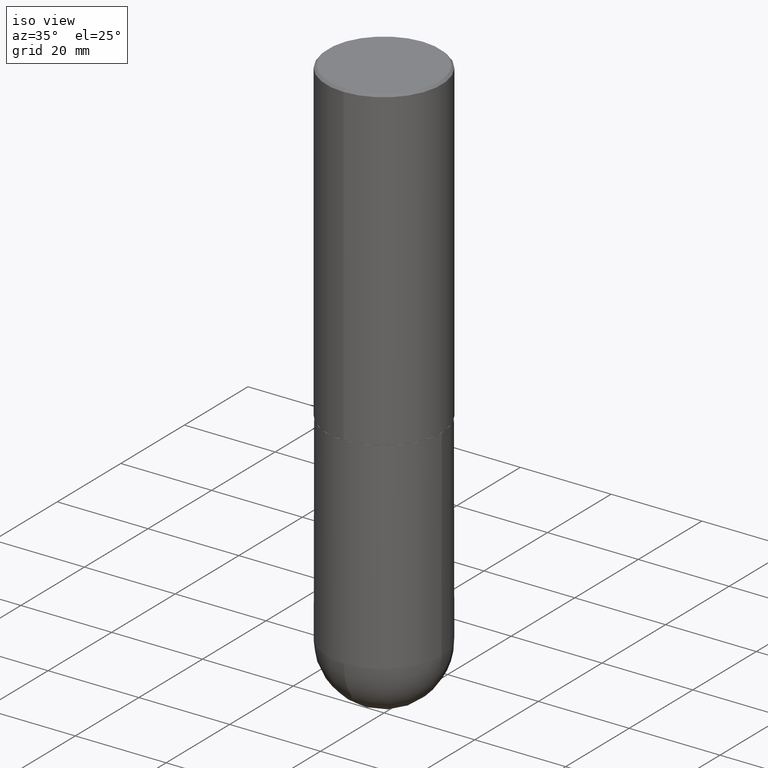
[diagram: clean part render]
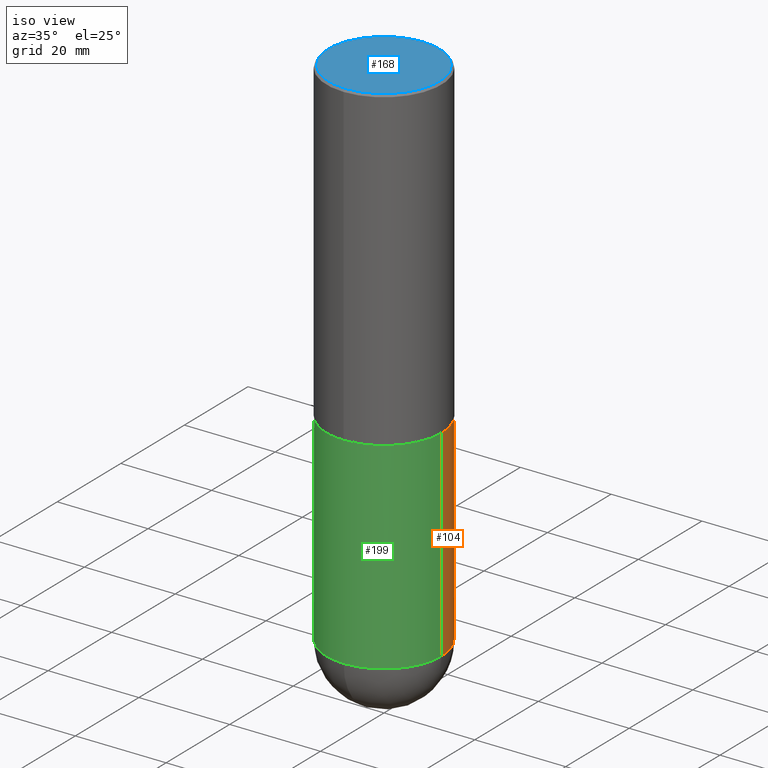
[diagram: same view with three faces highlighted in distinct colors, each labeled with its STEP entity id]
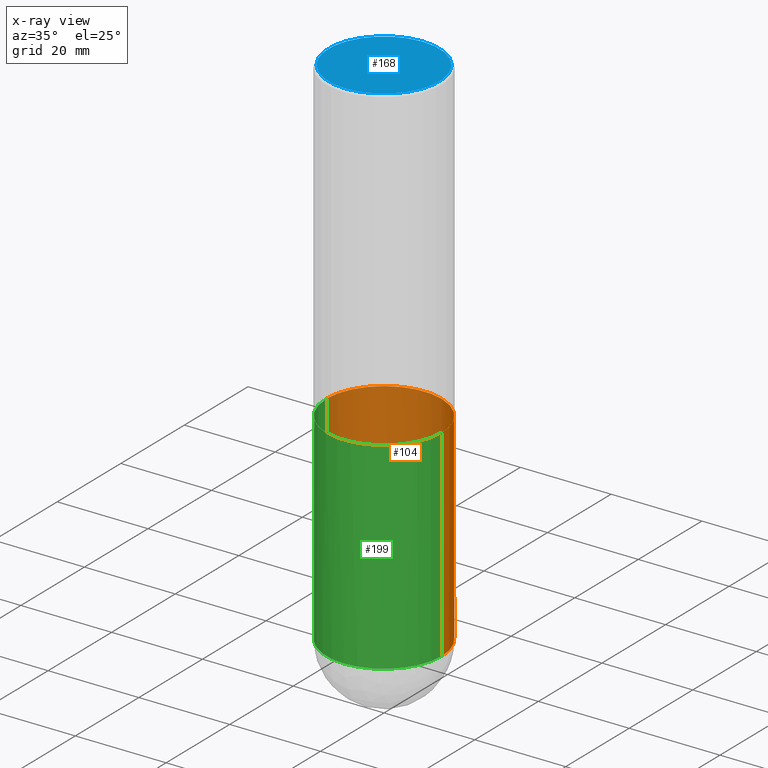
[diagram: x-ray of the same camera — body ghosted, the three highlighted faces saturated]
A machine part, iso view with three faces highlighted in distinct colors.
The next image is the same camera in x-ray (body ghosted, the three faces saturated) — at least one of them is partly hidden behind the body in this view.
Their STEP definitions:

[orange] entity #104 — the highlighted cylindrical surface (partial cylindrical patch) has radius 12.7 mm, axis along (-0, 0, 1).
#25 = ORIENTED_EDGE ( 'NONE', *, *, #386, .F. ) ;
#40 = CARTESIAN_POINT ( 'NONE',  ( 3.491481338843242218E-15, 0.4999999999999841238, -4.500000000000000888 ) ) ;
#50 = ORIENTED_EDGE ( 'NONE', *, *, #409, .T. ) ;
#55 = DIRECTION ( 'NONE',  ( -2.445468806185136597E-29, 3.491481338843145583E-15, 1.000000000000000000 ) ) ;
#56 = CARTESIAN_POINT ( 'NONE',  ( 1.100460962783311244E-28, -1.571166602479415374E-14, -4.499999999999999112 ) ) ;
#61 = DIRECTION ( 'NONE',  ( -2.445468806185136597E-29, 3.491481338843145583E-15, 1.000000000000000000 ) ) ;
#63 = ORIENTED_EDGE ( 'NONE', *, *, #297, .T. ) ;
#67 = ORIENTED_EDGE ( 'NONE', *, *, #80, .T. ) ;
#80 = EDGE_CURVE ( 'NONE', #353, #195, #116, .T. ) ;
#83 = VECTOR ( 'NONE', #164, 39.37007874015748143 ) ;
#88 = VERTEX_POINT ( 'NONE', #147 ) ;
#90 = VERTEX_POINT ( 'NONE', #359 ) ;
#96 = VECTOR ( 'NONE', #338, 39.37007874015748143 ) ;
#103 = CIRCLE ( 'NONE', #163, 0.5000000000000000000 ) ;
#104 = ADVANCED_FACE ( 'NONE', ( #117 ), #216, .T. ) ;
#112 = DIRECTION ( 'NONE',  ( -2.445468806185136597E-29, 3.491481338843145583E-15, 1.000000000000000000 ) ) ;
#116 = CIRCLE ( 'NONE', #139, 0.5000000000000000000 ) ;
#117 = FACE_OUTER_BOUND ( 'NONE', #363, .T. ) ;
#139 = AXIS2_PLACEMENT_3D ( 'NONE', #397, #112, #392 ) ;
#147 = CARTESIAN_POINT ( 'NONE',  ( -0.5000000000000000000, -9.103906174505900082E-15, -2.750000000000000000 ) ) ;
#155 = DIRECTION ( 'NONE',  ( -2.445468806185136597E-29, 3.491481338843145583E-15, 1.000000000000000000 ) ) ;
#158 = CARTESIAN_POINT ( 'NONE',  ( 6.725039217009124520E-29, -9.601573681818649859E-15, -2.750000000000000000 ) ) ;
#159 = VERTEX_POINT ( 'NONE', #212 ) ;
#163 = AXIS2_PLACEMENT_3D ( 'NONE', #158, #61, #283 ) ;
#164 = DIRECTION ( 'NONE',  ( -2.445468806185136877E-29, 3.491481338843145188E-15, 1.000000000000000000 ) ) ;
#174 = AXIS2_PLACEMENT_3D ( 'NONE', #303, #55, #279 ) ;
#177 = ORIENTED_EDGE ( 'NONE', *, *, #245, .F. ) ;
#195 = VERTEX_POINT ( 'NONE', #336 ) ;
#211 = CIRCLE ( 'NONE', #325, 0.5000000000000000000 ) ;
#212 = CARTESIAN_POINT ( 'NONE',  ( 0.5000000000000000000, -1.309305502066178321E-14, -2.750000000000000000 ) ) ;
#216 = CYLINDRICAL_SURFACE ( 'NONE', #174, 0.5000000000000000000 ) ;
#245 = EDGE_CURVE ( 'NONE', #159, #88, #103, .T. ) ;
#252 = LINE ( 'NONE', #412, #83 ) ;
#279 = DIRECTION ( 'NONE',  ( 1.000000000000000000, -6.982962677686266711E-15, 4.876176775795935793E-29 ) ) ;
#283 = DIRECTION ( 'NONE',  ( 1.000000000000000000, -6.982962677686266711E-15, 0.000000000000000000 ) ) ;
#297 = EDGE_CURVE ( 'NONE', #195, #88, #252, .T. ) ;
#303 = CARTESIAN_POINT ( 'NONE',  ( 0.000000000000000000, 0.000000000000000000, 0.000000000000000000 ) ) ;
#325 = AXIS2_PLACEMENT_3D ( 'NONE', #56, #155, #351 ) ;
#336 = CARTESIAN_POINT ( 'NONE',  ( -0.5000000000000000000, -9.103906174505904815E-15, -4.499999999999999112 ) ) ;
#338 = DIRECTION ( 'NONE',  ( -2.445468806185136877E-29, 3.491481338843145188E-15, 1.000000000000000000 ) ) ;
#351 = DIRECTION ( 'NONE',  ( 1.000000000000000000, -6.982962677686262766E-15, 0.000000000000000000 ) ) ;
#353 = VERTEX_POINT ( 'NONE', #40 ) ;
#359 = CARTESIAN_POINT ( 'NONE',  ( 0.5000000000000000000, -1.614810119214953752E-14, -4.499999999999999112 ) ) ;
#363 = EDGE_LOOP ( 'NONE', ( #67, #63, #177, #25, #50 ) ) ;
#382 = LINE ( 'NONE', #404, #96 ) ;
#386 = EDGE_CURVE ( 'NONE', #90, #159, #382, .T. ) ;
#392 = DIRECTION ( 'NONE',  ( 1.000000000000000000, -6.982962677686262766E-15, 0.000000000000000000 ) ) ;
#397 = CARTESIAN_POINT ( 'NONE',  ( 1.100460962783311244E-28, -1.571166602479415374E-14, -4.499999999999999112 ) ) ;
#404 = CARTESIAN_POINT ( 'NONE',  ( 0.5000000000000000000, -3.491481338843133355E-15, 2.438088387897967896E-29 ) ) ;
#409 = EDGE_CURVE ( 'NONE', #90, #353, #211, .T. ) ;
#412 = CARTESIAN_POINT ( 'NONE',  ( -0.5000000000000000000, 3.552713678800500929E-15, -2.459467545127452891E-29 ) ) ;

[blue] entity #168 — the highlighted planar face has unit normal (0, -0, -1).
#19 = ORIENTED_EDGE ( 'NONE', *, *, #320, .T. ) ;
#51 = DIRECTION ( 'NONE',  ( 2.445544383253700422E-29, -3.491373108179382004E-15, -1.000000000000000000 ) ) ;
#53 = EDGE_CURVE ( 'NONE', #203, #94, #394, .T. ) ;
#94 = VERTEX_POINT ( 'NONE', #399 ) ;
#127 = CARTESIAN_POINT ( 'NONE',  ( 3.421651712066269268E-15, 0.4799999999999996492, -1.377115168337680020E-15 ) ) ;
#168 = ADVANCED_FACE ( 'NONE', ( #185 ), #333, .F. ) ;
#169 = ORIENTED_EDGE ( 'NONE', *, *, #53, .T. ) ;
#176 = DIRECTION ( 'NONE',  ( 6.982962677686265922E-15, 1.000000000000000000, -3.491373108179382004E-15 ) ) ;
#185 = FACE_OUTER_BOUND ( 'NONE', #275, .T. ) ;
#200 = CIRCLE ( 'NONE', #319, 0.4799999999999996492 ) ;
#203 = VERTEX_POINT ( 'NONE', #127 ) ;
#215 = DIRECTION ( 'NONE',  ( -6.982962677686265922E-15, -1.000000000000000000, 3.491373108179382399E-15 ) ) ;
#224 = DIRECTION ( 'NONE',  ( -2.445544383253700702E-29, 3.491373108179382004E-15, 1.000000000000000000 ) ) ;
#236 = DIRECTION ( 'NONE',  ( -6.982962677686265922E-15, -1.000000000000000000, 3.491373108179382399E-15 ) ) ;
#240 = CARTESIAN_POINT ( 'NONE',  ( -7.305915243628390316E-45, 1.043026501048613982E-30, 2.987439235884223367E-16 ) ) ;
#275 = EDGE_LOOP ( 'NONE', ( #169, #19 ) ) ;
#287 = AXIS2_PLACEMENT_3D ( 'NONE', #401, #51, #176 ) ;
#312 = CARTESIAN_POINT ( 'NONE',  ( -7.305915243628390316E-45, 1.043026501048613982E-30, 2.987439235884223367E-16 ) ) ;
#319 = AXIS2_PLACEMENT_3D ( 'NONE', #312, #224, #215 ) ;
#320 = EDGE_CURVE ( 'NONE', #94, #203, #200, .T. ) ;
#327 = DIRECTION ( 'NONE',  ( -2.445544383253700702E-29, 3.491373108179382004E-15, 1.000000000000000000 ) ) ;
#333 = PLANE ( 'NONE',  #287 ) ;
#360 = AXIS2_PLACEMENT_3D ( 'NONE', #240, #327, #236 ) ;
#394 = CIRCLE ( 'NONE', #360, 0.4799999999999996492 ) ;
#399 = CARTESIAN_POINT ( 'NONE',  ( -3.361644018908048478E-15, -0.4799999999999996492, 1.974603015514524298E-15 ) ) ;
#401 = CARTESIAN_POINT ( 'NONE',  ( 3.351822085289405181E-15, 0.4799999999999996492, -1.526487130131891237E-15 ) ) ;

[green] entity #199 — the highlighted cylindrical surface (partial cylindrical patch) has radius 12.7 mm, axis along (-0, 0, 1).
#4 = AXIS2_PLACEMENT_3D ( 'NONE', #370, #64, #314 ) ;
#21 = CARTESIAN_POINT ( 'NONE',  ( 1.100460962783311244E-28, -1.571166602479415374E-14, -4.499999999999999112 ) ) ;
#24 = DIRECTION ( 'NONE',  ( -2.445468806185136597E-29, 3.491481338843145583E-15, 1.000000000000000000 ) ) ;
#57 = CARTESIAN_POINT ( 'NONE',  ( -3.552713678800393250E-15, -0.5000000000000160982, -4.499999999999998224 ) ) ;
#59 = AXIS2_PLACEMENT_3D ( 'NONE', #300, #24, #244 ) ;
#64 = DIRECTION ( 'NONE',  ( -2.445468806185136597E-29, 3.491481338843145583E-15, 1.000000000000000000 ) ) ;
#71 = EDGE_CURVE ( 'NONE', #195, #148, #128, .T. ) ;
#73 = AXIS2_PLACEMENT_3D ( 'NONE', #21, #365, #108 ) ;
#83 = VECTOR ( 'NONE', #164, 39.37007874015748143 ) ;
#88 = VERTEX_POINT ( 'NONE', #147 ) ;
#90 = VERTEX_POINT ( 'NONE', #359 ) ;
#96 = VECTOR ( 'NONE', #338, 39.37007874015748143 ) ;
#108 = DIRECTION ( 'NONE',  ( 1.000000000000000000, -6.982962677686262766E-15, 0.000000000000000000 ) ) ;
#122 = DIRECTION ( 'NONE',  ( 1.000000000000000000, -6.982962677686266711E-15, 4.876176775795935793E-29 ) ) ;
#128 = CIRCLE ( 'NONE', #73, 0.5000000000000000000 ) ;
#137 = CIRCLE ( 'NONE', #59, 0.5000000000000000000 ) ;
#147 = CARTESIAN_POINT ( 'NONE',  ( -0.5000000000000000000, -9.103906174505900082E-15, -2.750000000000000000 ) ) ;
#148 = VERTEX_POINT ( 'NONE', #57 ) ;
#154 = CIRCLE ( 'NONE', #4, 0.5000000000000000000 ) ;
#159 = VERTEX_POINT ( 'NONE', #212 ) ;
#164 = DIRECTION ( 'NONE',  ( -2.445468806185136877E-29, 3.491481338843145188E-15, 1.000000000000000000 ) ) ;
#170 = EDGE_CURVE ( 'NONE', #88, #159, #137, .T. ) ;
#179 = FACE_OUTER_BOUND ( 'NONE', #346, .T. ) ;
#190 = DIRECTION ( 'NONE',  ( -2.445468806185136597E-29, 3.491481338843145583E-15, 1.000000000000000000 ) ) ;
#195 = VERTEX_POINT ( 'NONE', #336 ) ;
#199 = ADVANCED_FACE ( 'NONE', ( #179 ), #405, .T. ) ;
#204 = ORIENTED_EDGE ( 'NONE', *, *, #71, .T. ) ;
#209 = ORIENTED_EDGE ( 'NONE', *, *, #349, .T. ) ;
#212 = CARTESIAN_POINT ( 'NONE',  ( 0.5000000000000000000, -1.309305502066178321E-14, -2.750000000000000000 ) ) ;
#233 = ORIENTED_EDGE ( 'NONE', *, *, #386, .T. ) ;
#241 = ORIENTED_EDGE ( 'NONE', *, *, #170, .F. ) ;
#244 = DIRECTION ( 'NONE',  ( 1.000000000000000000, -6.982962677686266711E-15, 0.000000000000000000 ) ) ;
#252 = LINE ( 'NONE', #412, #83 ) ;
#268 = AXIS2_PLACEMENT_3D ( 'NONE', #284, #190, #122 ) ;
#284 = CARTESIAN_POINT ( 'NONE',  ( 0.000000000000000000, 0.000000000000000000, 0.000000000000000000 ) ) ;
#297 = EDGE_CURVE ( 'NONE', #195, #88, #252, .T. ) ;
#300 = CARTESIAN_POINT ( 'NONE',  ( 6.725039217009124520E-29, -9.601573681818649859E-15, -2.750000000000000000 ) ) ;
#314 = DIRECTION ( 'NONE',  ( 1.000000000000000000, -6.982962677686262766E-15, 0.000000000000000000 ) ) ;
#323 = ORIENTED_EDGE ( 'NONE', *, *, #297, .F. ) ;
#336 = CARTESIAN_POINT ( 'NONE',  ( -0.5000000000000000000, -9.103906174505904815E-15, -4.499999999999999112 ) ) ;
#338 = DIRECTION ( 'NONE',  ( -2.445468806185136877E-29, 3.491481338843145188E-15, 1.000000000000000000 ) ) ;
#346 = EDGE_LOOP ( 'NONE', ( #323, #204, #209, #233, #241 ) ) ;
#349 = EDGE_CURVE ( 'NONE', #148, #90, #154, .T. ) ;
#359 = CARTESIAN_POINT ( 'NONE',  ( 0.5000000000000000000, -1.614810119214953752E-14, -4.499999999999999112 ) ) ;
#365 = DIRECTION ( 'NONE',  ( -2.445468806185136597E-29, 3.491481338843145583E-15, 1.000000000000000000 ) ) ;
#370 = CARTESIAN_POINT ( 'NONE',  ( 1.100460962783311244E-28, -1.571166602479415374E-14, -4.499999999999999112 ) ) ;
#382 = LINE ( 'NONE', #404, #96 ) ;
#386 = EDGE_CURVE ( 'NONE', #90, #159, #382, .T. ) ;
#404 = CARTESIAN_POINT ( 'NONE',  ( 0.5000000000000000000, -3.491481338843133355E-15, 2.438088387897967896E-29 ) ) ;
#405 = CYLINDRICAL_SURFACE ( 'NONE', #268, 0.5000000000000000000 ) ;
#412 = CARTESIAN_POINT ( 'NONE',  ( -0.5000000000000000000, 3.552713678800500929E-15, -2.459467545127452891E-29 ) ) ;